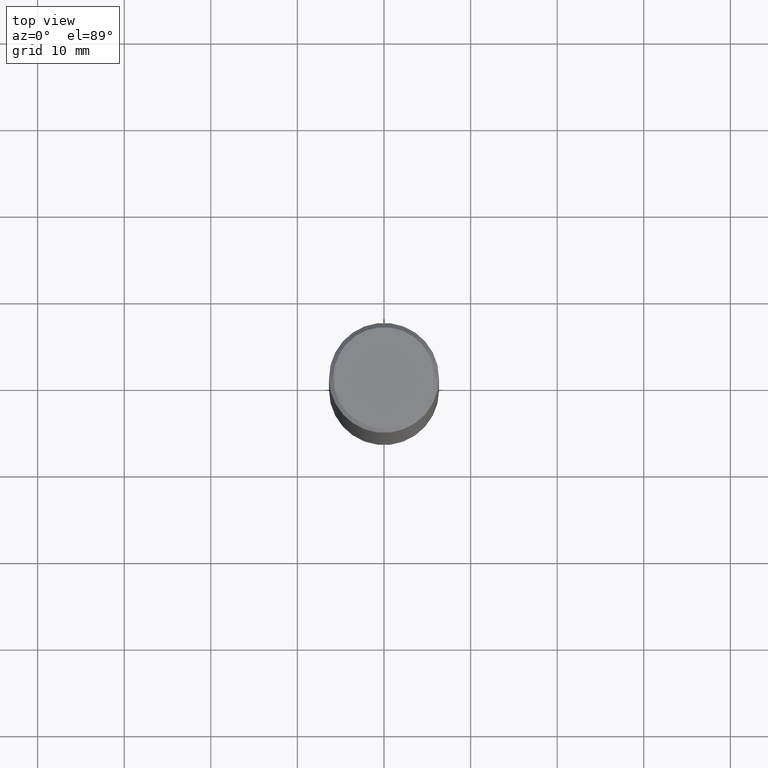
[diagram: clean part render]
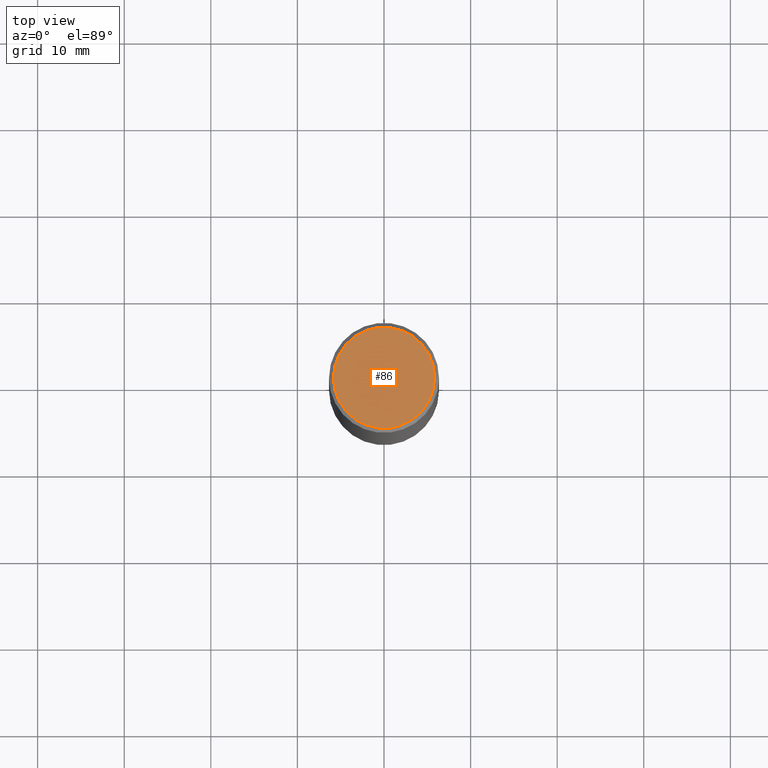
[diagram: same view with one face highlighted and labeled with its STEP entity id]
A machine part, top view. The second image highlights one B-rep face of the part: STEP entity #86.
In plain terms, the highlighted planar face has unit normal (0, -0, -1).
Its self-contained STEP definition (entity closure, byte-faithful):
#10 = DIRECTION ( 'NONE',  ( -2.445468806185136597E-29, 3.491481338843145583E-15, 1.000000000000000000 ) ) ;
#36 = AXIS2_PLACEMENT_3D ( 'NONE', #191, #10, #344 ) ;
#56 = CARTESIAN_POINT ( 'NONE',  ( 0.2299999999999992606, -1.681434332853594870E-15, 8.537024980212318048E-18 ) ) ;
#74 = PLANE ( 'NONE',  #306 ) ;
#86 = ADVANCED_FACE ( 'NONE', ( #218 ), #74, .F. ) ;
#103 = ORIENTED_EDGE ( 'NONE', *, *, #167, .T. ) ;
#116 = CIRCLE ( 'NONE', #339, 0.2299999999999992606 ) ;
#128 = DIRECTION ( 'NONE',  ( -2.445468806185136597E-29, 3.491481338843145583E-15, 1.000000000000000000 ) ) ;
#131 = ORIENTED_EDGE ( 'NONE', *, *, #269, .T. ) ;
#148 = VERTEX_POINT ( 'NONE', #380 ) ;
#153 = DIRECTION ( 'NONE',  ( -1.000000000000000000, 6.982962677686265922E-15, -4.876176775795935793E-29 ) ) ;
#167 = EDGE_CURVE ( 'NONE', #290, #148, #338, .T. ) ;
#191 = CARTESIAN_POINT ( 'NONE',  ( -2.087702828670439639E-46, 2.980686340760894400E-32, 8.537024980200822558E-18 ) ) ;
#218 = FACE_OUTER_BOUND ( 'NONE', #392, .T. ) ;
#269 = EDGE_CURVE ( 'NONE', #148, #290, #116, .T. ) ;
#290 = VERTEX_POINT ( 'NONE', #56 ) ;
#306 = AXIS2_PLACEMENT_3D ( 'NONE', #327, #459, #153 ) ;
#327 = CARTESIAN_POINT ( 'NONE',  ( 1.606081415867835940E-15, 0.2299999999999992606, -7.987721954438205014E-16 ) ) ;
#338 = CIRCLE ( 'NONE', #36, 0.2299999999999992606 ) ;
#339 = AXIS2_PLACEMENT_3D ( 'NONE', #361, #128, #471 ) ;
#344 = DIRECTION ( 'NONE',  ( 1.000000000000000000, -6.982962677686266711E-15, 4.875813741439115469E-29 ) ) ;
#361 = CARTESIAN_POINT ( 'NONE',  ( -2.087702828670439639E-46, 2.980686340760894400E-32, 8.537024980200822558E-18 ) ) ;
#380 = CARTESIAN_POINT ( 'NONE',  ( -0.2299999999999992606, 1.640996229256267786E-15, 8.537024980189468815E-18 ) ) ;
#392 = EDGE_LOOP ( 'NONE', ( #131, #103 ) ) ;
#459 = DIRECTION ( 'NONE',  ( 2.438088387897960049E-29, -3.491481338843145188E-15, -1.000000000000000000 ) ) ;
#471 = DIRECTION ( 'NONE',  ( 1.000000000000000000, -6.982962677686266711E-15, 4.875813741439115469E-29 ) ) ;